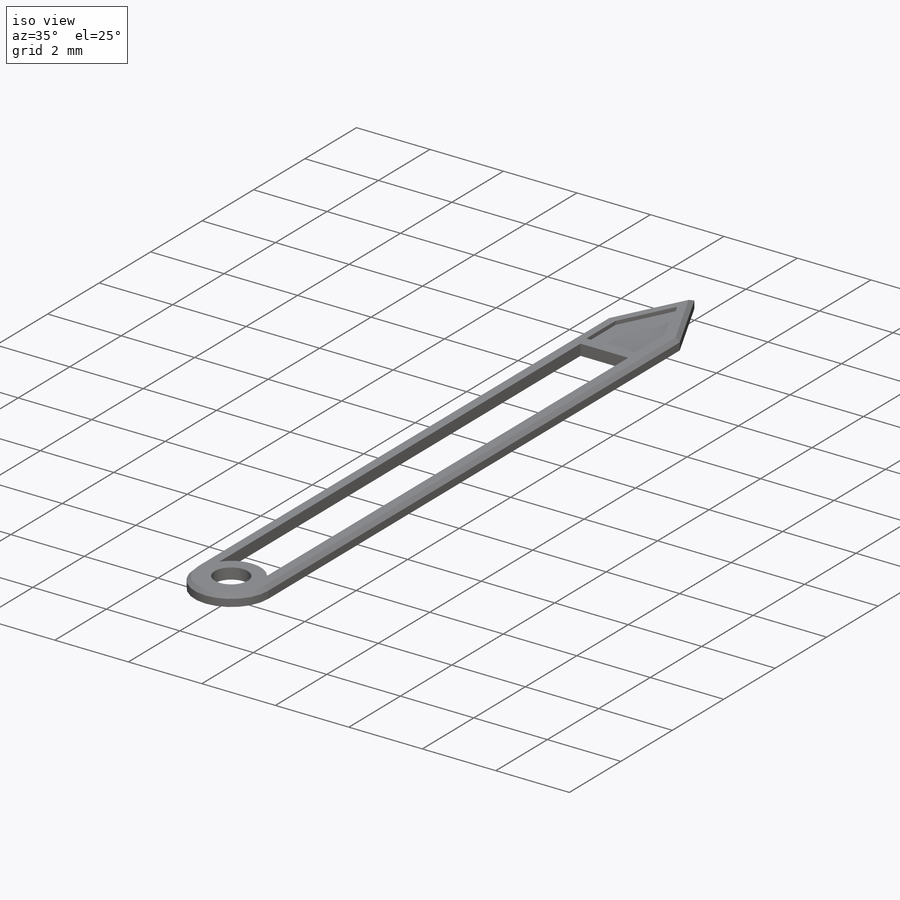
[diagram: iso view]
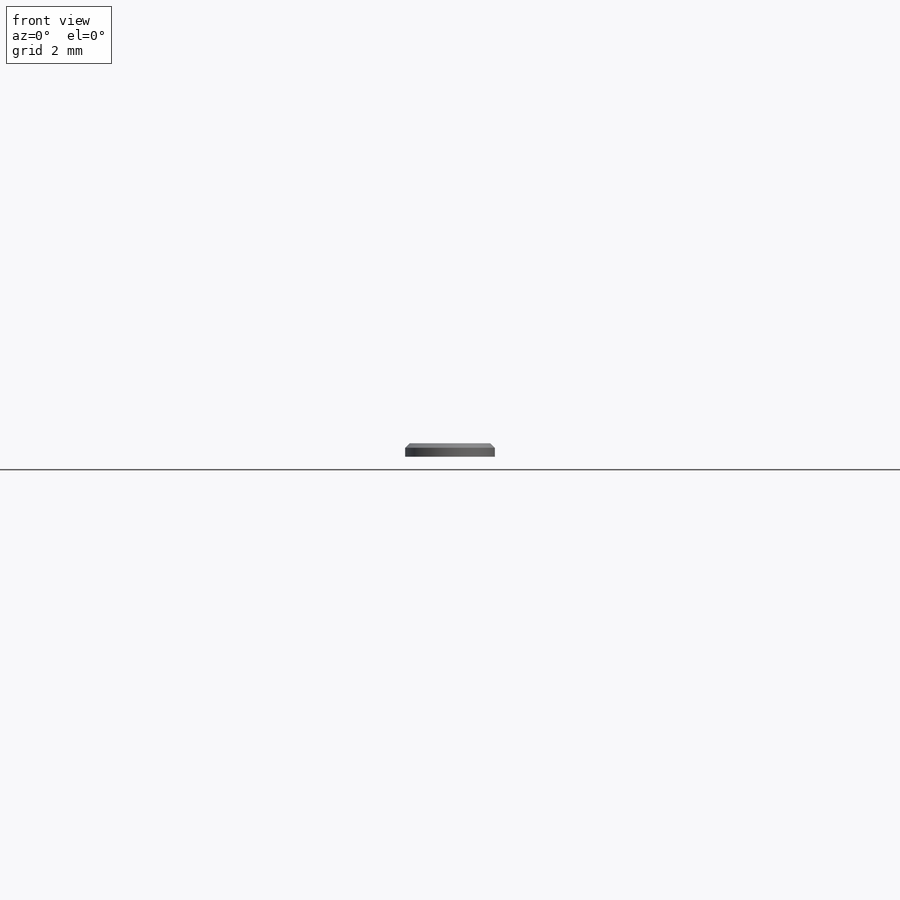
[diagram: front view]
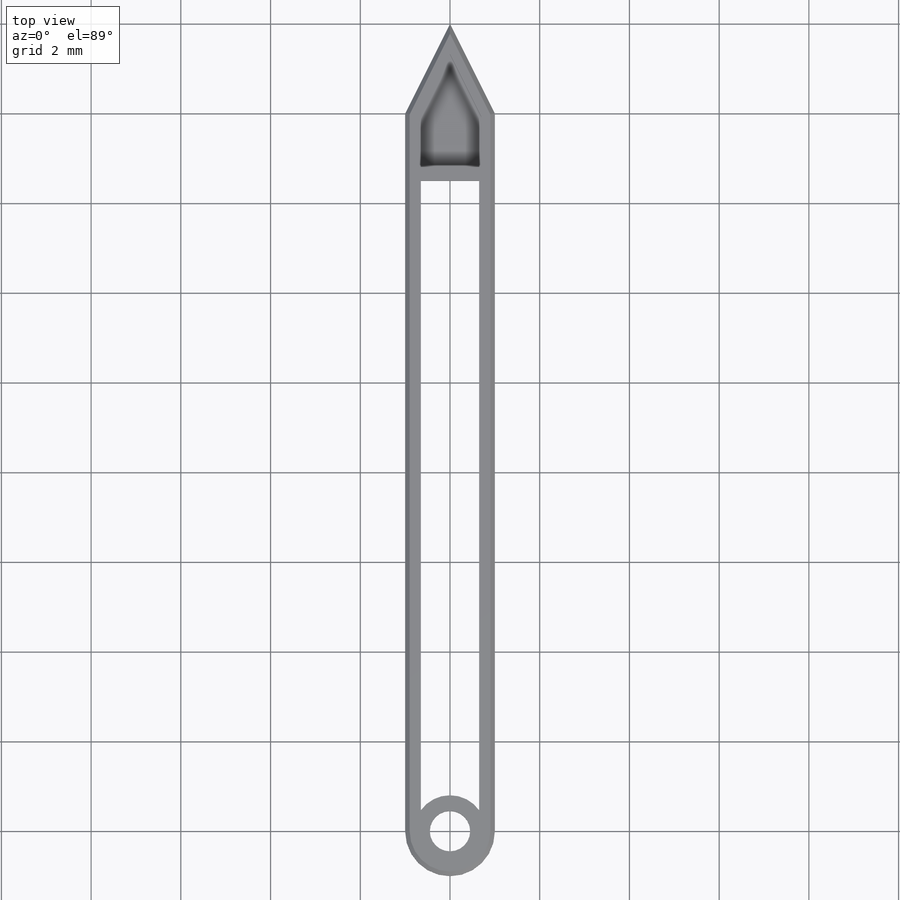
[diagram: top view]
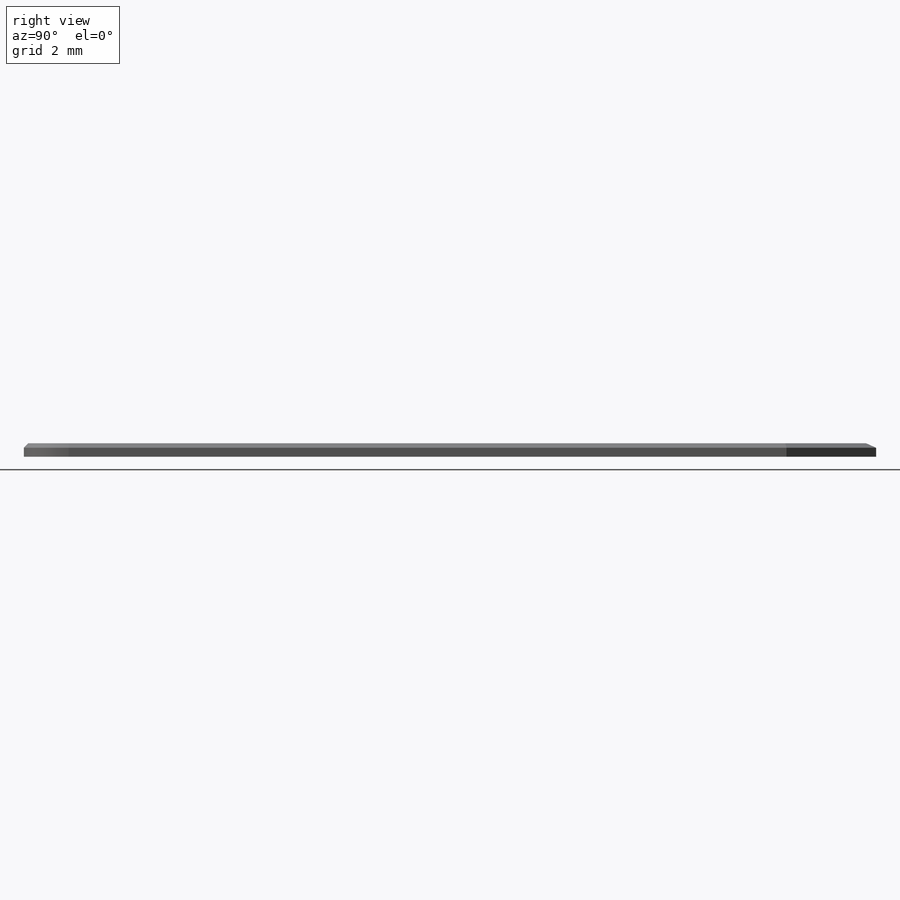
[diagram: right view]
SOLIDWORKS PART (.sldprt)
format: sldprt  version: not decoded by parser v0  size: 116,224 bytes
history: native  units: mm
features: sketch x2, material x1, extrude x1, cut_extrude x1, chamfer x1 (+11 scaffold rows collapsed)
feature tree (17):
  scaffold x11  (default folders/planes/origin — collapsed)
  material  "Material <not specified>"
  sketch  "Sketch1"  dims[c1.D1=0.9mm c1.D4=1.6mm c1.D2=2.0mm c1.D3=16.0mm c2.D4=0.35mm c2.D5=3.5mm c2.D6=0.35mm c2.D7=18.0mm]
  extrude  "Boss-Extrude1"  Depth=0.3mm
  sketch  "Sketch2"  dims[D2=0.3mm D3=0.3mm D1=0.3mm]
  cut_extrude  "Cut-Extrude1"  Depth=0.1mm
  chamfer  "Chamfer1"  Distance=0.1mm Angle=45deg
decode coverage: 5 of 5 modeling features carry decoded parameters
note: suppression state not decoded; provenance and decode notes live in map.json
